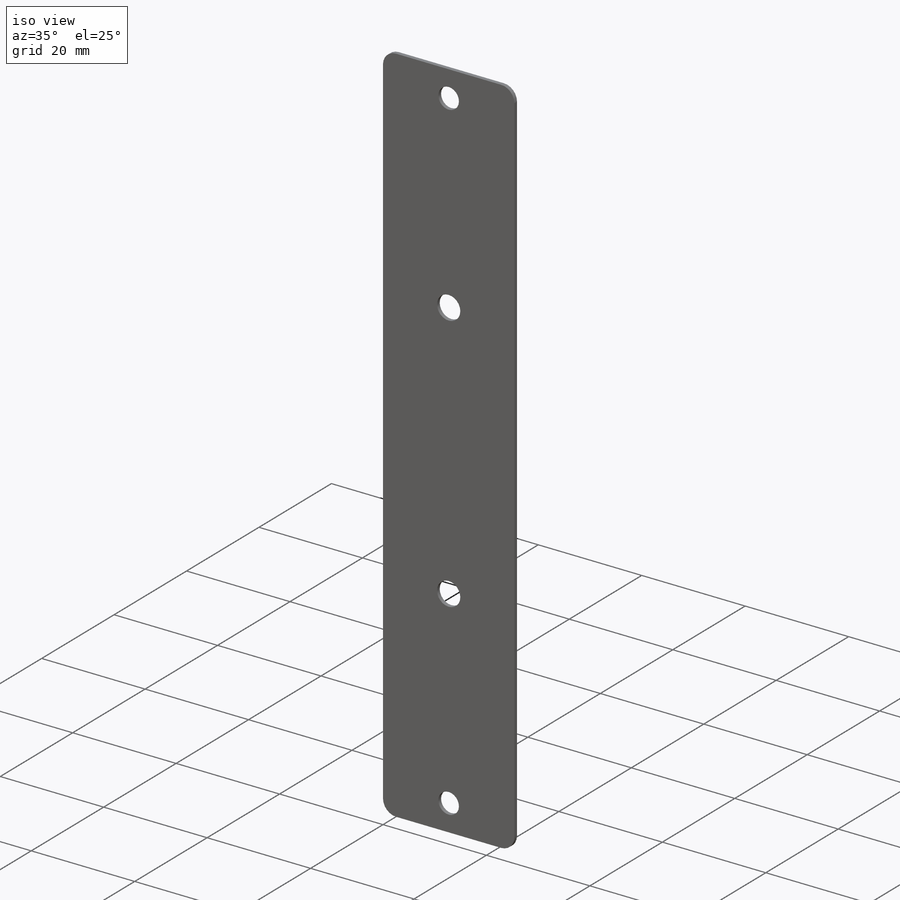
[diagram: iso view]
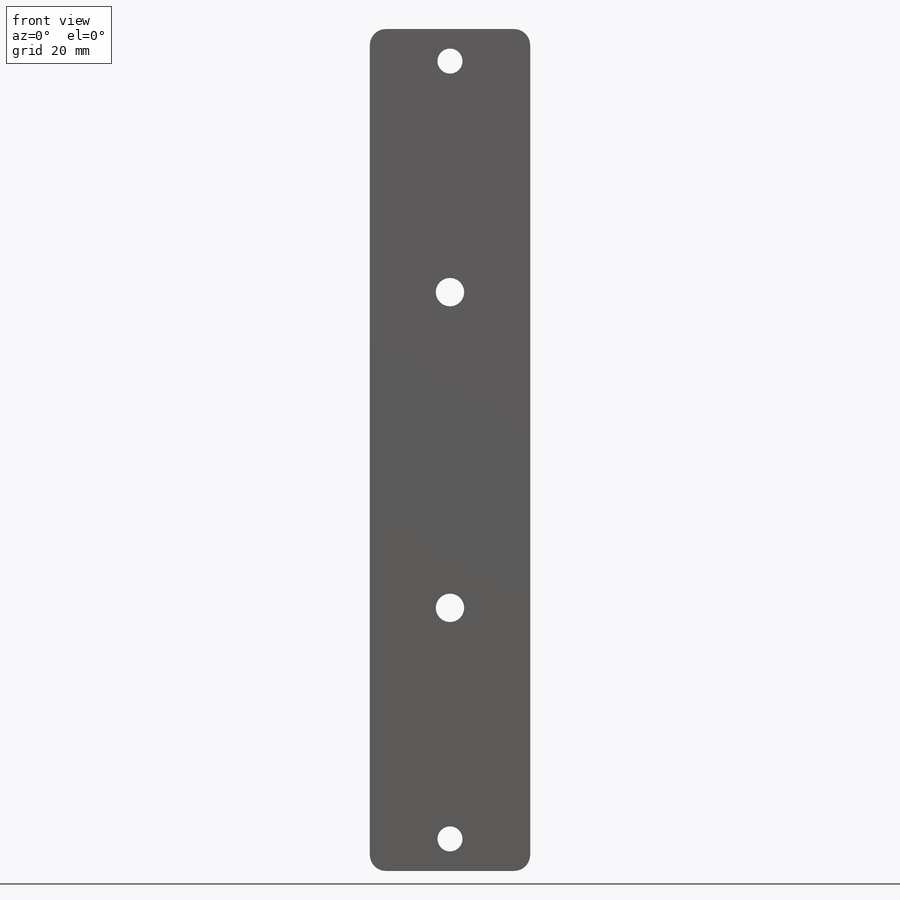
[diagram: front view]
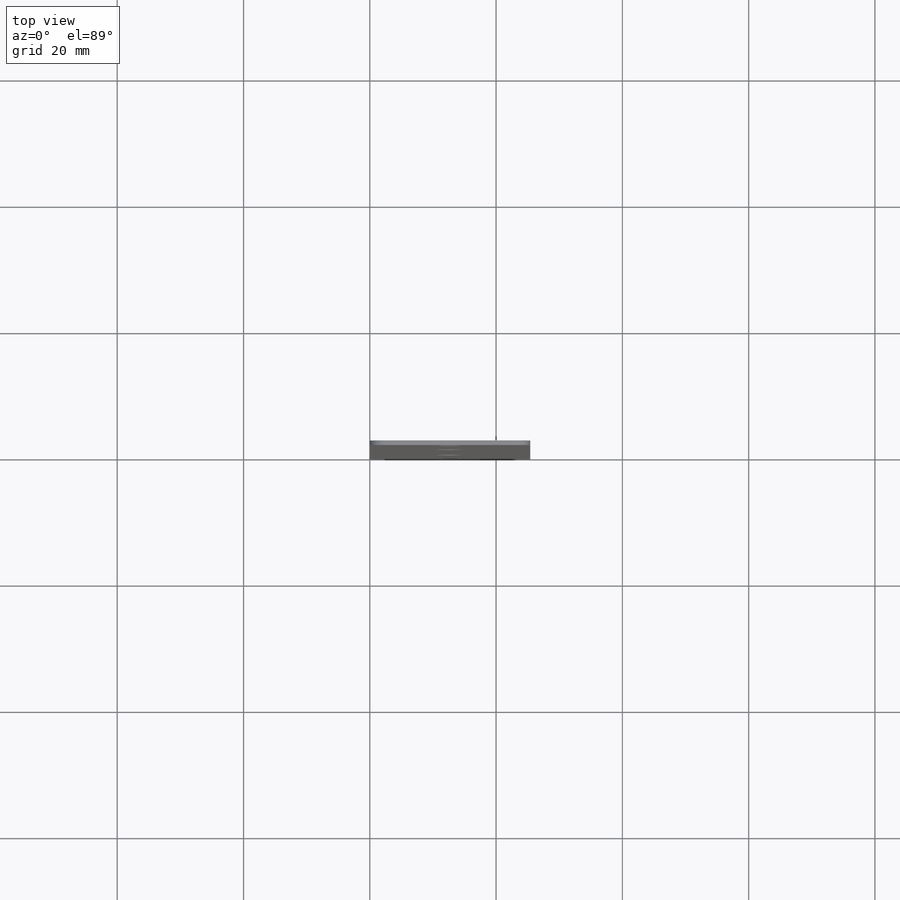
[diagram: top view]
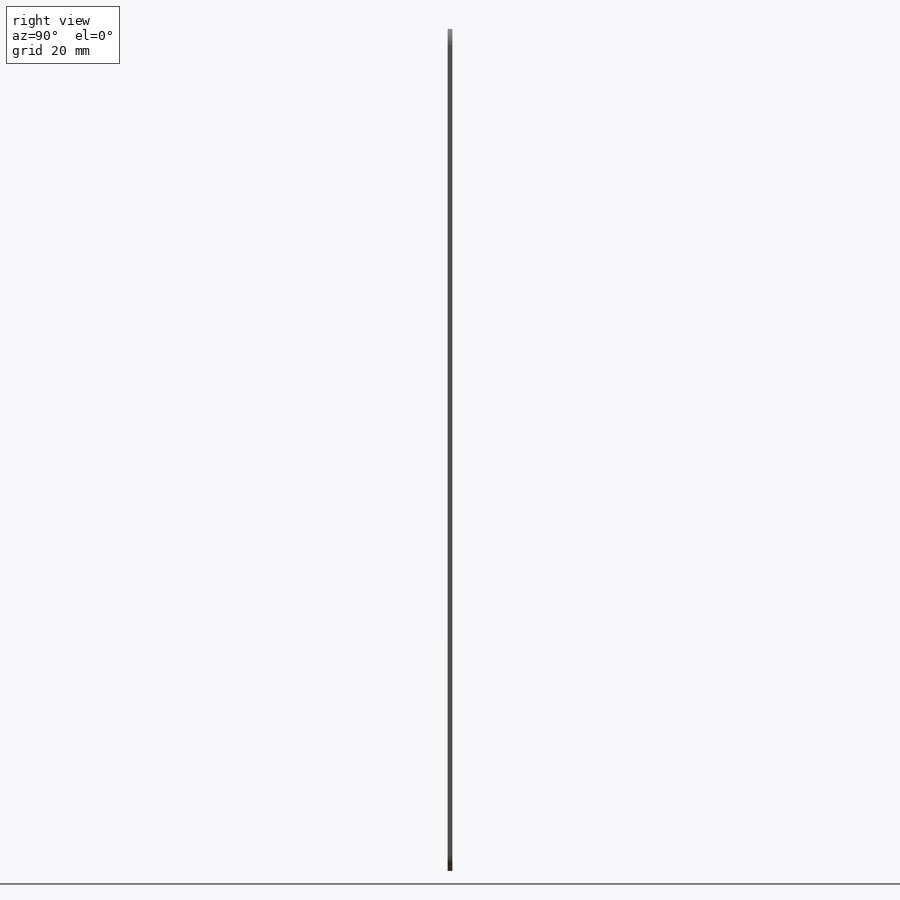
[diagram: right view]
SOLIDWORKS PART (.sldprt)
format: sldprt  version: not decoded by parser v0  size: 203,776 bytes
history: native  units: mm
features: sketch x7, sheet_metal_op x2, hole x2, material x1 + 1 further entry (+12 scaffold rows collapsed; 1 parser-record rows omitted)
feature tree (26):
  scaffold x12  (default folders/planes/origin — collapsed)
  material  "Material <not specified>"
  sketch  "Sketch1"  dims[D1=25.4mm D2=133.35mm]
  sheet_metal_op  "Sheet-Metal1"
  sheet_metal_op  "Base-Flange1"
  hole  "M4 Clearance Hole2"  Diameter=4.5mm Depth=0.7366mm
  sketch  "Sketch6"  dims[c1.D1=150.0mm c1.D2=50.0mm c2.D1=50.0mm c2.D2=3.175mm c2.D3=3.175mm]
  sketch  "Sketch5"  dims[hole-wizard template sketch: 60 standard entries collapsed; hole parameters kept: c18.Thru Hole Depth=0.7366mm]
  hole  "5/32 (0.15625) Diameter Hole2"  Diameter=3.96875mm Depth=0.7366mm
  sketch  "Sketch8"  dims[D1=123.19mm]
  sketch  "Sketch7"  dims[hole-wizard template sketch: 61 standard entries collapsed; hole parameters above]
  "Flat-Pattern1"
  sketch  "Bend-Lines1"
  sketch  "Bounding-Box1"
  parser-record x1  (decoder bookkeeping rows leaked as tree rows — omitted from the tree; the rows remain in map.json)
decode coverage: 7 of 11 modeling features carry decoded parameters; 1 rows unclassified (native names shown)
note: ~ marks probable driven/reference dimensions
note: suppression state not decoded; provenance and decode notes live in map.json
